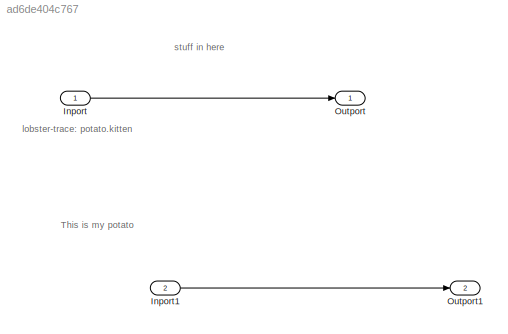
MODEL slx_ad6de404c767
KIND model
CONFIG AbsTol = auto
CONFIG EnableMultiTasking = off
CONFIG FixedStep = auto
CONFIG MaxStep = auto
CONFIG MinStep = auto
CONFIG RelTol = 1e-3
CONFIG SampleTimeConstraint = Unconstrained
CONFIG SolverName = VariableStepAuto
CONFIG StartTime = 0.0
CONFIG StopTime = 10.0
BLOCK [Inport] Inport
BLOCK [Inport] Inport1
  Port = 2
BLOCK [Outport] Outport
BLOCK [Outport] Outport1
  Port = 2
ANNOTATION (root): This is my potato
ANNOTATION (root): lobster-trace: potato.kitten
ANNOTATION (root): stuff in here
LINE Inport1:1 -> Outport1:1
LINE Inport:1 -> Outport:1
